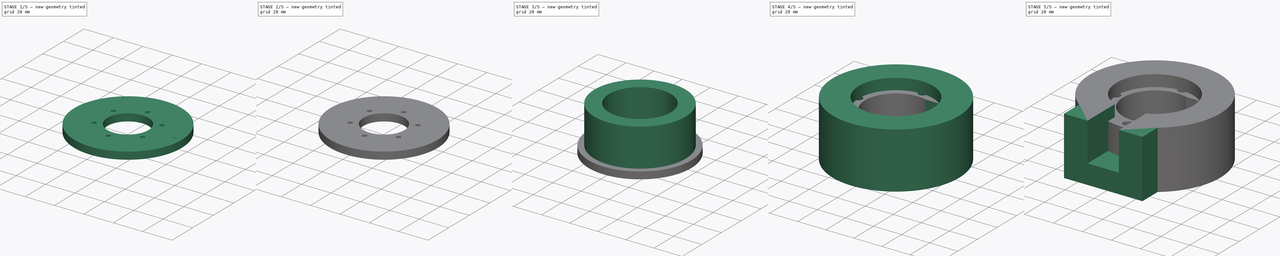
[diagram: build sequence overview — one tinted view per stage of 5, left to right]
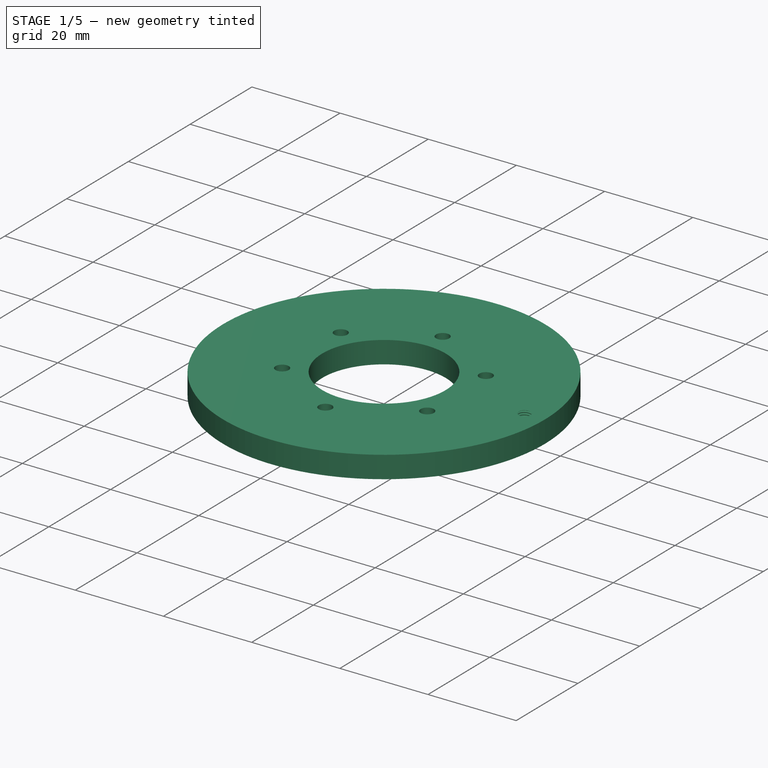
[diagram: stage 1 of 5 — iso view after this stage's code; geometry added in this stage tinted green]
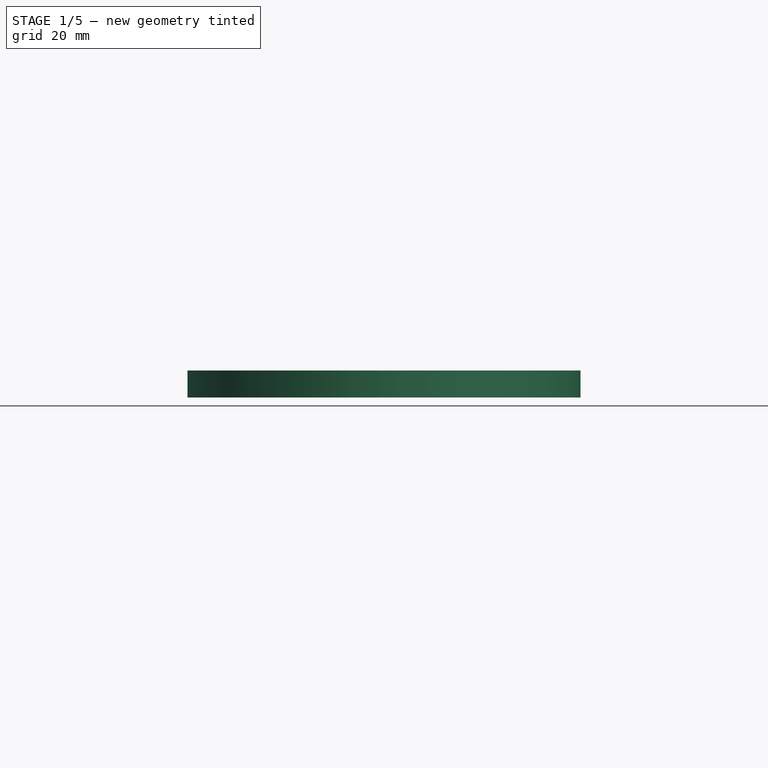
[diagram: stage 1 of 5 — front view after this stage's code; geometry added in this stage tinted green]
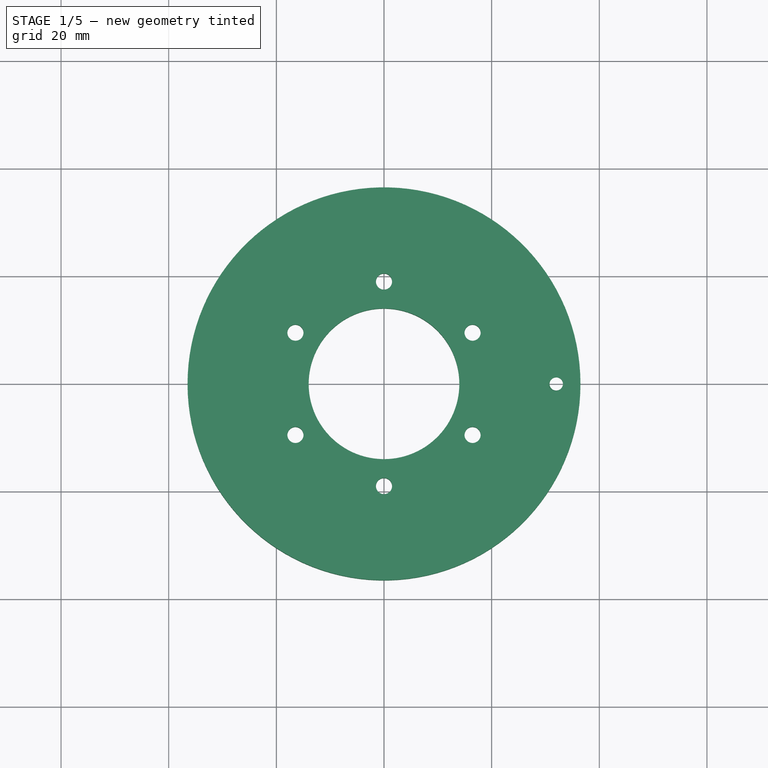
[diagram: stage 1 of 5 — top view after this stage's code; geometry added in this stage tinted green]
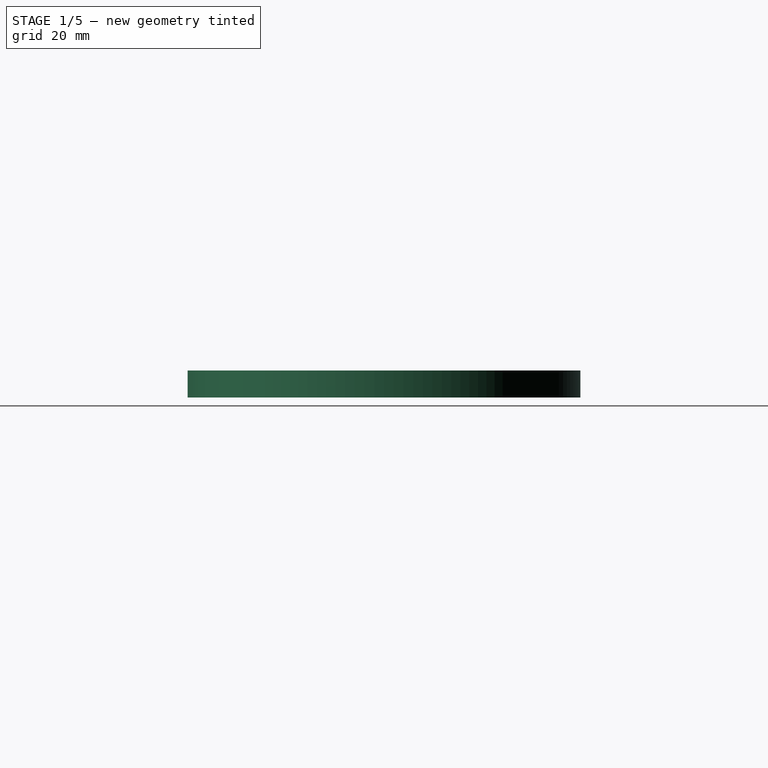
[diagram: stage 1 of 5 — right view after this stage's code; geometry added in this stage tinted green]
FCSTD DOCUMENT  (FreeCAD 1.0R39319 (Git))
Label: MainShaftHolder
License: All rights reserved
LicenseURL: https://en.wikipedia.org/wiki/All_rights_reserved
objects: Sketcher::SketchObject×15, PartDesign::Pocket×9, PartDesign::PolarPattern×6, PartDesign::Revolution×4, PartDesign::Body×4, PartDesign::Pad×1, App::Link×1, PartDesign::Hole×1
note: 91 computed .brp shape members not serialized (recipe doc carries the construction recipe); baked Part::Feature solids carry a one-line shape summary decoded from their .brp
EXTERNAL_REF file=Robot.FCStd obj=Spreadsheet

FEATURE [PartDesign::Body] Body004  label="MainArmRotatorV2_print"
  AllowCompound = false
  Group = -> [Sketch022,Revolution002,Sketch023,Pocket006,PolarPattern002,Sketch024,Pocket007,PolarPattern003]
  Origin = -> Origin004
  Placement = pos=(0,-3.45707e-06,29) rot=(0,0,1;0rad)
  Tip = -> PolarPattern003
FEATURE [Sketcher::SketchObject] Sketch025
  ArcFitTolerance = 1e-06
  AttachmentSupport = -> [XZ_Plane005]
  FullyConstrained = false
  MakeInternals = false
  MapMode = 5
  Placement = pos=(0,0,0) rot=(1,0,0;1.5708rad)
  sketch-geometry (4):
    g0: LineSegment StartX=14 StartY=0 StartZ=0 EndX=14 EndY=5 EndZ=0
    g1: LineSegment StartX=14 StartY=5 StartZ=0 EndX=36.5 EndY=5 EndZ=0
    g2: LineSegment StartX=36.5 StartY=5 StartZ=0 EndX=36.5 EndY=0 EndZ=0
    g3: LineSegment StartX=36.5 StartY=0 StartZ=0 EndX=14 EndY=0 EndZ=0
  constraints (11):
    c: Horizontal(g1)
    c: Coincident(g1,g2)
    c: PointOnObject(g2,g-1)
    c: Vertical(g2)
    c: Coincident(g2,g3)
    c: Coincident(g3,g0)
    c: Vertical(g0)
    c: Horizontal(g3)
    c: Distance(g-2,g0) = 14
    c: Distance(g2,g2) = 5
    c: Distance(g-2,g2) = 36.5
FEATURE [PartDesign::Revolution] Revolution003
  Angle = 360
  Angle2 = 60
  Axis = (0,2e-16,1)
  Base = (0,0,0)
  Placement = pos=(0,0,0) rot=(1,0,0;1.5708rad)
  Profile = -> Sketch025
  ReferenceAxis = -> Sketch025 [V_Axis]
  Refine = true
  Reversed = true
  Suppressed = false
  Type = 0
FEATURE [Sketcher::SketchObject] Sketch026
  ArcFitTolerance = 1e-06
  AttachmentSupport = -> [Revolution003]
  FullyConstrained = true
  MakeInternals = false
  MapMode = 5
  Placement = pos=(0,1.1e-15,5) rot=(0,0,1;3.14159rad)
  sketch-geometry (1):
    g0: Circle CenterX=0 CenterY=19 CenterZ=0 NormalX=0 NormalY=0 NormalZ=1 AngleXU=0 Radius=1.5
  constraints (3):
    c: Diameter(g0) = 3
    c: Vertical(g0,g-1)
    c: DistanceY(g-1,g0) = 19
FEATURE [PartDesign::Pocket] Pocket008
  BaseFeature = -> Revolution003
  Direction = (0,0,-1)
  Length = 5
  Length2 = 5
  Placement = pos=(0,0,0) rot=(1,0,0;1.5708rad)
  Profile = -> Sketch026
  ReferenceAxis = -> Sketch026 [N_Axis]
  Refine = true
  Suppressed = false
  Type = 0
FEATURE [PartDesign::PolarPattern] PolarPattern004
  Angle = 360
  Axis = -> Sketch026 [N_Axis]
  BaseFeature = -> Pocket008
  Mode = 0
  Occurrences = 6
  Offset = 120
  Originals = -> [Pocket008]
  Placement = pos=(0,0,0) rot=(1,0,0;1.5708rad)
  Refine = true
  Suppressed = false
  TransformMode = 0
FEATURE [Sketcher::SketchObject] Sketch027
  ArcFitTolerance = 1e-06
  AttachmentSupport = -> [PolarPattern004]
  FullyConstrained = true
  MakeInternals = false
  MapMode = 5
  Placement = pos=(0,1.1e-15,5) rot=(0,0,1;3.14159rad)
  sketch-geometry (1):
    g0: Circle CenterX=-32 CenterY=0 CenterZ=0 NormalX=0 NormalY=0 NormalZ=1 AngleXU=0 Radius=1.5
  constraints (3):
    c: Diameter(g0) = 3
    c: PointOnObject(g0,g-1)
    c: DistanceX(g0,g-1) = 32
FEATURE [PartDesign::Hole] Hole
  BaseFeature = -> PolarPattern004
  CustomThreadClearance = 0
  Depth = 5
  DepthType = 0
  Diameter = 2.5
  DrillForDepth = false
  DrillPoint = 0
  DrillPointAngle = 118
  HoleCutCountersinkAngle = 90
  HoleCutCustomValues = false
  HoleCutDepth = 0
  HoleCutDiameter = 6.1
  HoleCutType = 0
  ModelThread = true
  Placement = pos=(0,0,0) rot=(1,0,0;1.5708rad)
  Profile = -> Sketch027
  Refine = true
  Suppressed = false
  Tapered = false
  TaperedAngle = 90
  ThreadClass = 1
  ThreadDepth = 5
  ThreadDepthType = 0
  ThreadDirection = 0
  ThreadFit = 0
  ThreadSize = 9
  ThreadType = 1
  Threaded = true
  UseCustomThreadClearance = false
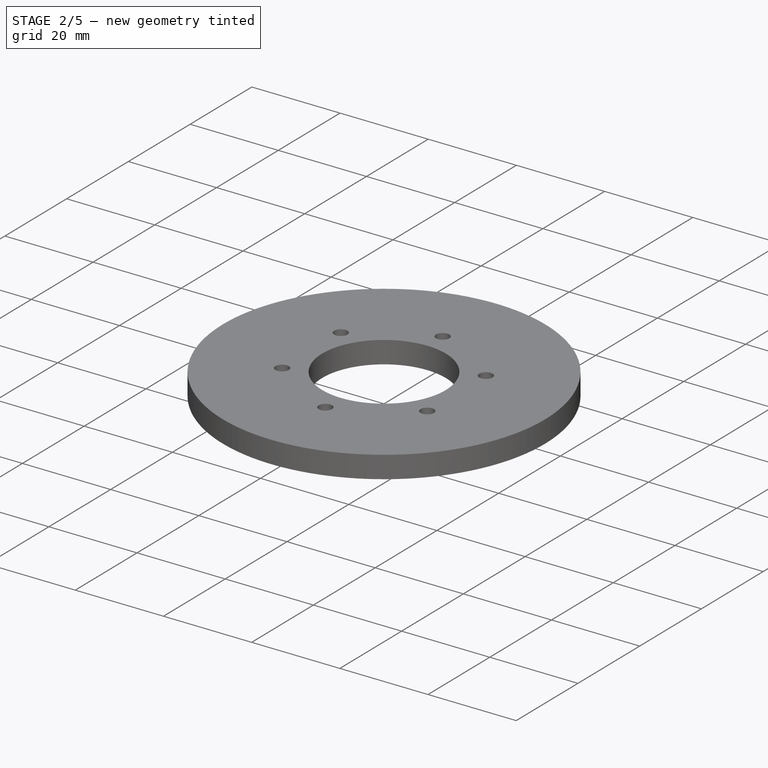
[diagram: stage 2 of 5 — iso view after this stage's code; geometry added in this stage tinted green]
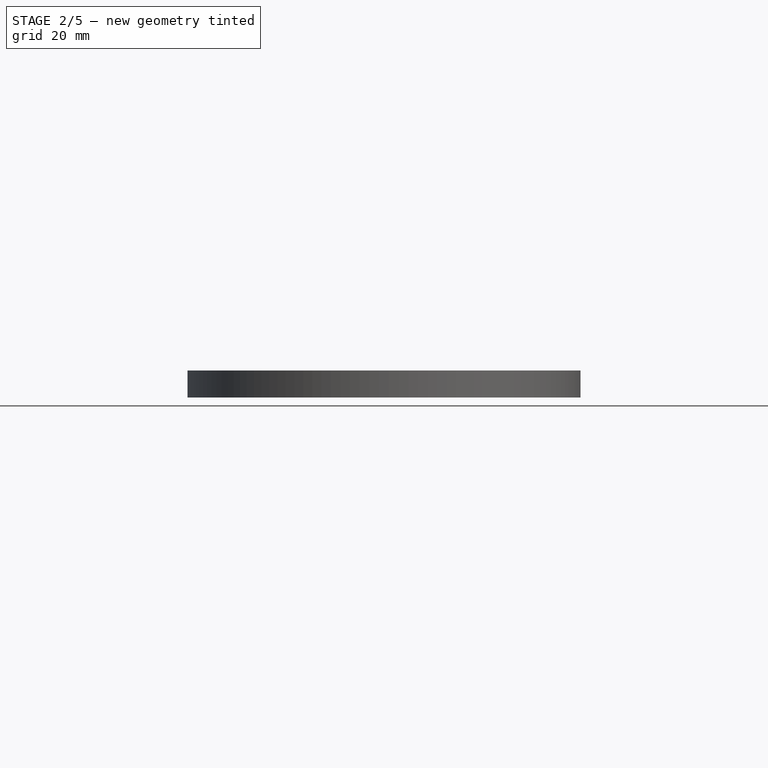
[diagram: stage 2 of 5 — front view after this stage's code; geometry added in this stage tinted green]
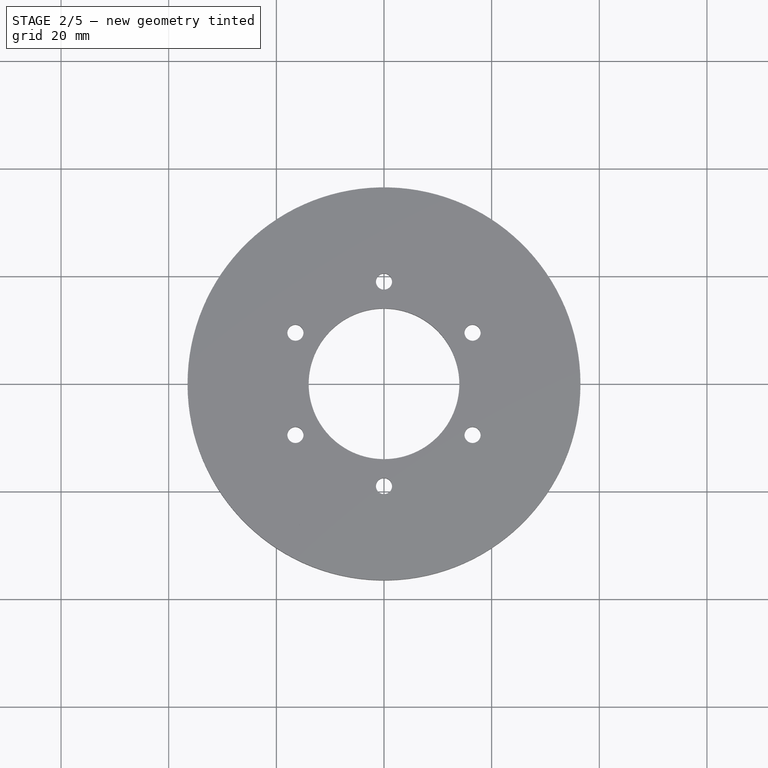
[diagram: stage 2 of 5 — top view after this stage's code; geometry added in this stage tinted green]
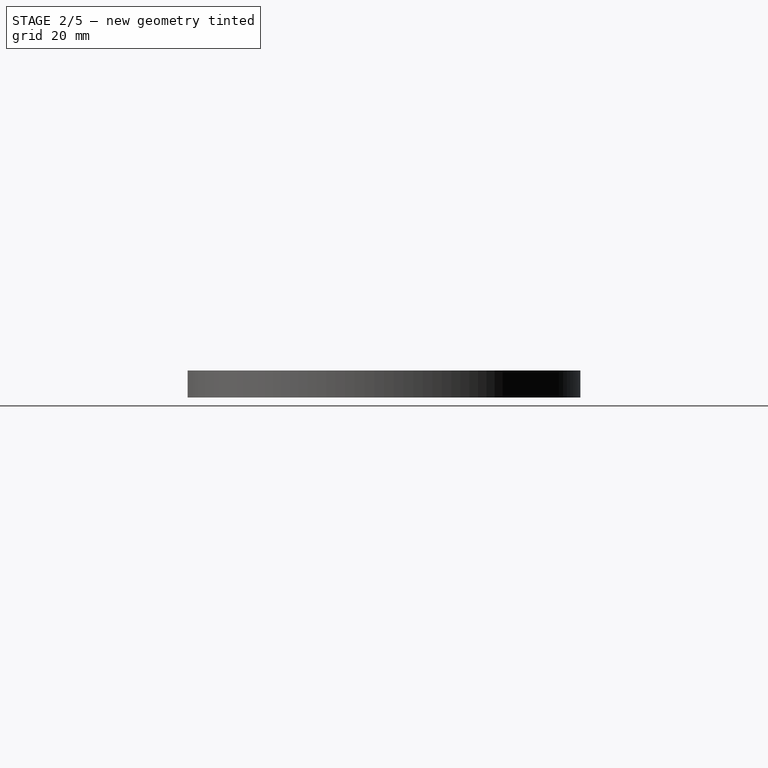
[diagram: stage 2 of 5 — right view after this stage's code; geometry added in this stage tinted green]
FEATURE [PartDesign::Body] Body  label="MainArmRotatorV2_old"
  AllowCompound = false
  Group = -> [Sketch017,Revolution001,Sketch018,Pocket002,PolarPattern001,Sketch019,Pocket003,Sketch020,Pocket004,Sketch021,Pocket005]
  Origin = -> Origin
  Placement = pos=(0,-3.45707e-06,29) rot=(0,0,1;0rad)
  Tip = -> Pocket005
FEATURE [Sketcher::SketchObject] Sketch022
  ArcFitTolerance = 1e-06
  AttachmentSupport = -> [XZ_Plane004]
  FullyConstrained = false
  MakeInternals = false
  MapMode = 5
  Placement = pos=(0,0,0) rot=(1,0,0;1.5708rad)
  sketch-geometry (4):
    g0: LineSegment StartX=14 StartY=0 StartZ=0 EndX=14 EndY=5 EndZ=0
    g1: LineSegment StartX=14 StartY=5 StartZ=0 EndX=36.5 EndY=5 EndZ=0
    g2: LineSegment StartX=36.5 StartY=5 StartZ=0 EndX=36.5 EndY=0 EndZ=0
    g3: LineSegment StartX=36.5 StartY=0 StartZ=0 EndX=14 EndY=0 EndZ=0
  constraints (11):
    c: Horizontal(g1)
    c: Coincident(g1,g2)
    c: PointOnObject(g2,g-1)
    c: Vertical(g2)
    c: Coincident(g2,g3)
    c: Coincident(g3,g0)
    c: Vertical(g0)
    c: Horizontal(g3)
    c: Distance(g-2,g0) = 14
    c: Distance(g2,g2) = 5
    c: Distance(g-2,g2) = 36.5
FEATURE [PartDesign::Revolution] Revolution002
  Angle = 360
  Angle2 = 60
  Axis = (0,2e-16,1)
  Base = (0,0,0)
  Placement = pos=(0,0,0) rot=(1,0,0;1.5708rad)
  Profile = -> Sketch022
  ReferenceAxis = -> Sketch022 [V_Axis]
  Refine = true
  Reversed = true
  Suppressed = false
  Type = 0
FEATURE [Sketcher::SketchObject] Sketch023
  ArcFitTolerance = 1e-06
  AttachmentSupport = -> [Revolution002]
  FullyConstrained = true
  MakeInternals = false
  MapMode = 5
  Placement = pos=(0,2.2e-15,5) rot=(0,0,1;3.14159rad)
  sketch-geometry (1):
    g0: Circle CenterX=0 CenterY=19 CenterZ=0 NormalX=0 NormalY=0 NormalZ=1 AngleXU=0 Radius=1.5
  constraints (3):
    c: Diameter(g0) = 3
    c: Vertical(g0,g-1)
    c: DistanceY(g-1,g0) = 19
FEATURE [PartDesign::Pocket] Pocket006
  BaseFeature = -> Revolution002
  Direction = (0,0,-1)
  Length = 5
  Length2 = 5
  Placement = pos=(0,0,0) rot=(1,0,0;1.5708rad)
  Profile = -> Sketch023
  ReferenceAxis = -> Sketch023 [N_Axis]
  Refine = true
  Suppressed = false
  Type = 0
FEATURE [PartDesign::PolarPattern] PolarPattern002
  Angle = 360
  Axis = -> Sketch023 [N_Axis]
  BaseFeature = -> Pocket006
  Mode = 0
  Occurrences = 6
  Offset = 120
  Originals = -> [Pocket006]
  Placement = pos=(0,0,0) rot=(1,0,0;1.5708rad)
  Refine = true
  Suppressed = false
  TransformMode = 0
FEATURE [PartDesign::PolarPattern] PolarPattern005
  Angle = 360
  Axis = -> Sketch027 [N_Axis]
  BaseFeature = -> PolarPattern004
  Mode = 1
  Occurrences = 6
  Offset = 60
  Originals = -> [Hole]
  Placement = pos=(0,0,0) rot=(1,0,0;1.5708rad)
  Refine = true
  Suppressed = false
  TransformMode = 0
FEATURE [PartDesign::Body] Body005  label="MainArmRotatorV2"
  AllowCompound = false
  Group = -> [Sketch025,Revolution003,Sketch026,Pocket008,PolarPattern004,Sketch027,Hole,PolarPattern005]
  Origin = -> Origin005
  Placement = pos=(0,-3.45707e-06,29) rot=(0,0,1;0rad)
  Tip = -> PolarPattern005
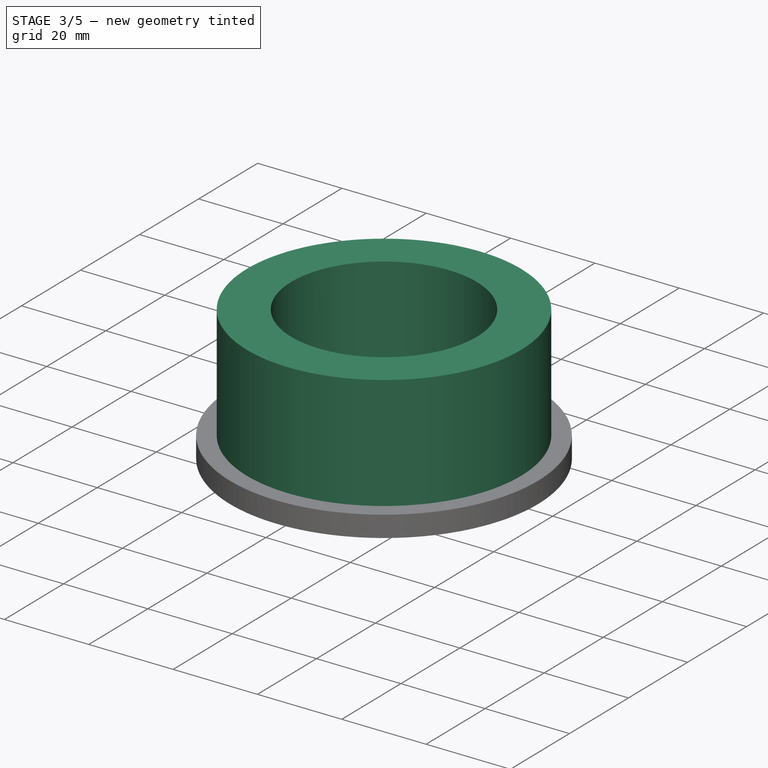
[diagram: stage 3 of 5 — iso view after this stage's code; geometry added in this stage tinted green]
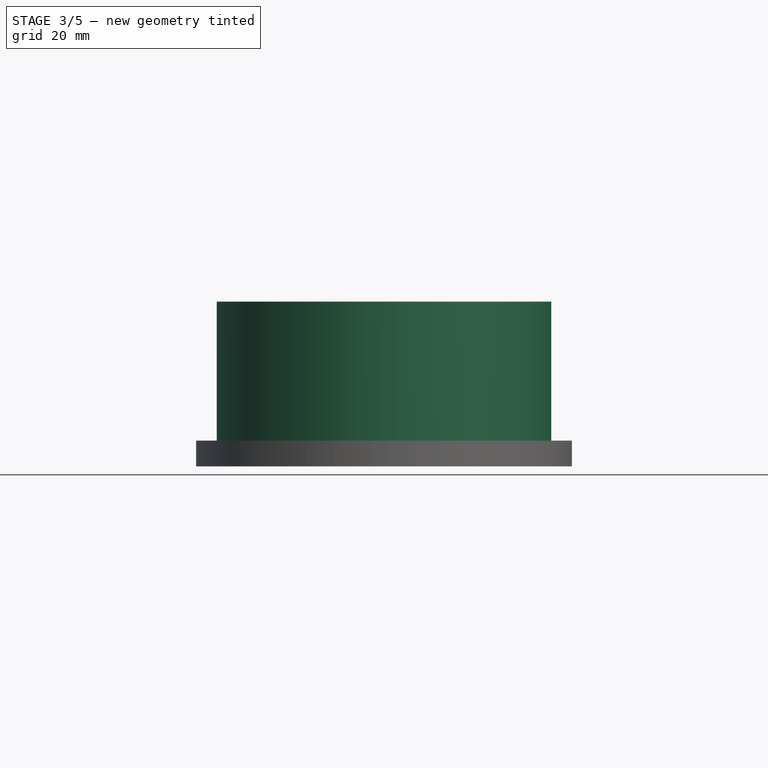
[diagram: stage 3 of 5 — front view after this stage's code; geometry added in this stage tinted green]
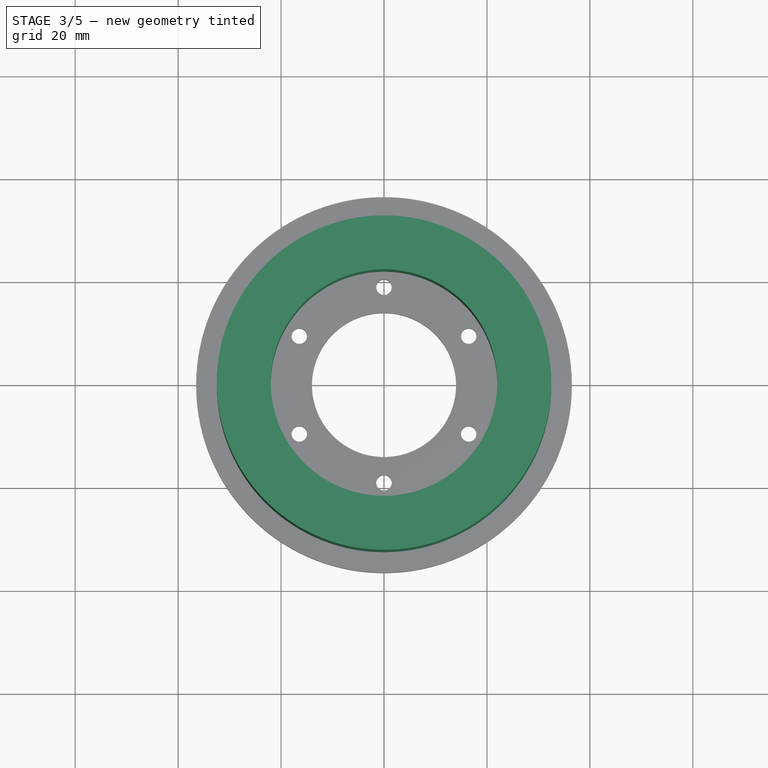
[diagram: stage 3 of 5 — top view after this stage's code; geometry added in this stage tinted green]
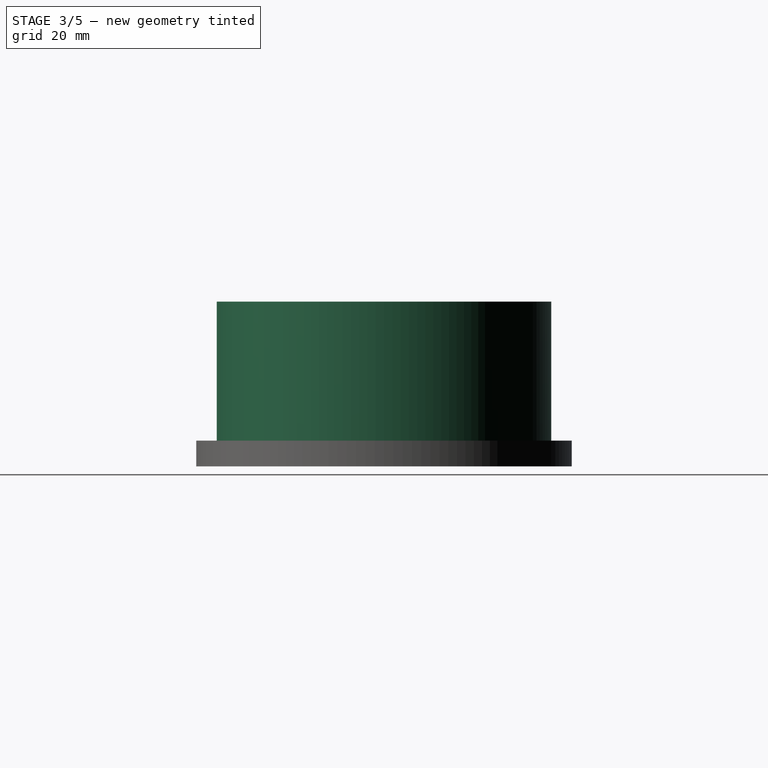
[diagram: stage 3 of 5 — right view after this stage's code; geometry added in this stage tinted green]
FEATURE [PartDesign::Body] Body003  label="MainArmRotator"
  AllowCompound = false
  Group = -> [Sketch014,Sketch,Revolution,Pocket,PolarPattern,Sketch015,Pad,Sketch016,Pocket001]
  Origin = -> Origin003
  Placement = pos=(0,0,22) rot=(0,0,1;1.5708rad)
  Tip = -> Pocket001
FEATURE [App::Link] Link001  label="SpreadSheet"
  LinkedObject = -> <external Robot.FCStd>#Spreadsheet
FEATURE [Sketcher::SketchObject] Sketch017
  ArcFitTolerance = 1e-06
  AttachmentSupport = -> [XZ_Plane]
  FullyConstrained = true
  MakeInternals = false
  MapMode = 5
  Placement = pos=(0,0,0) rot=(1,0,0;1.5708rad)
  sketch-geometry (8):
    g0: LineSegment StartX=14 StartY=0 StartZ=0 EndX=14 EndY=5 EndZ=0
    g1: LineSegment StartX=14 StartY=5 StartZ=0 EndX=22 EndY=5 EndZ=0
    g2: LineSegment StartX=22 StartY=5 StartZ=0 EndX=22 EndY=32 EndZ=0
    g3: LineSegment StartX=22 StartY=32 StartZ=0 EndX=32.5 EndY=32 EndZ=0
    g4: LineSegment StartX=32.5 StartY=32 StartZ=0 EndX=32.5 EndY=5 EndZ=0
    g5: LineSegment StartX=32.5 StartY=5 StartZ=0 EndX=36.5 EndY=5 EndZ=0
    g6: LineSegment StartX=36.5 StartY=5 StartZ=0 EndX=36.5 EndY=0 EndZ=0
    g7: LineSegment StartX=36.5 StartY=0 StartZ=0 EndX=14 EndY=0 EndZ=0
  constraints (24):
    c: Coincident(g0,g1)
    c: Horizontal(g1)
    c: Coincident(g1,g2)
    c: Vertical(g2)
    c: Coincident(g2,g3)
    c: Horizontal(g3)
    c: Coincident(g3,g4)
    c: Vertical(g4)
    c: Coincident(g4,g5)
    c: Horizontal(g5)
    c: Coincident(g5,g6)
    c: PointOnObject(g6,g-1)
    c: Vertical(g6)
    c: Coincident(g6,g7)
    c: Coincident(g7,g0)
    c: Vertical(g0)
    c: Horizontal(g7)
    c: Distance(g-2,g0) = 14
    c: Distance(g6,g6) = 5
    c: Distance(g7,g1) = 5
    c: Distance(g-2,g2) = 22
    c: Distance(g-2,g4) = 32.5
    c: Distance(g-1,g3) = 32
    c: Distance(g-2,g6) = 36.5
FEATURE [PartDesign::Revolution] Revolution001
  Angle = 360
  Angle2 = 60
  Axis = (0,2e-16,1)
  Base = (0,0,0)
  Placement = pos=(0,0,0) rot=(1,0,0;1.5708rad)
  Profile = -> Sketch017
  ReferenceAxis = -> Sketch017 [V_Axis]
  Refine = true
  Reversed = true
  Suppressed = false
  Type = 0
FEATURE [Sketcher::SketchObject] Sketch018
  ArcFitTolerance = 1e-06
  AttachmentSupport = -> [Revolution001]
  FullyConstrained = true
  MakeInternals = false
  MapMode = 5
  Placement = pos=(0,2.2e-15,5) rot=(0,0,1;3.14159rad)
  sketch-geometry (1):
    g0: Circle CenterX=0 CenterY=19 CenterZ=0 NormalX=0 NormalY=0 NormalZ=1 AngleXU=0 Radius=1.5
  constraints (3):
    c: Diameter(g0) = 3
    c: Vertical(g0,g-1)
    c: DistanceY(g-1,g0) = 19
FEATURE [PartDesign::Pocket] Pocket002
  BaseFeature = -> Revolution001
  Direction = (0,0,-1)
  Length = 5
  Length2 = 5
  Placement = pos=(0,0,0) rot=(1,0,0;1.5708rad)
  Profile = -> Sketch018
  ReferenceAxis = -> Sketch018 [N_Axis]
  Refine = true
  Suppressed = false
  Type = 0
FEATURE [PartDesign::PolarPattern] PolarPattern001
  Angle = 360
  Axis = -> Sketch018 [N_Axis]
  BaseFeature = -> Pocket002
  Mode = 0
  Occurrences = 6
  Offset = 120
  Originals = -> [Pocket002]
  Placement = pos=(0,0,0) rot=(1,0,0;1.5708rad)
  Refine = true
  Suppressed = false
  TransformMode = 0
FEATURE [Sketcher::SketchObject] Sketch024
  ArcFitTolerance = 1e-06
  AttachmentSupport = -> [PolarPattern002]
  FullyConstrained = true
  MakeInternals = false
  MapMode = 5
  Placement = pos=(0,2.2e-15,5) rot=(0,0,1;3.14159rad)
  sketch-geometry (1):
    g0: Circle CenterX=-32 CenterY=0 CenterZ=0 NormalX=0 NormalY=0 NormalZ=1 AngleXU=0 Radius=2
  constraints (3):
    c: Diameter(g0) = 4
    c: PointOnObject(g0,g-1)
    c: DistanceX(g0,g-1) = 32
FEATURE [PartDesign::Pocket] Pocket007
  BaseFeature = -> PolarPattern002
  Direction = (0,0,-1)
  Length = 5
  Length2 = 5
  Placement = pos=(0,0,0) rot=(1,0,0;1.5708rad)
  Profile = -> Sketch024
  ReferenceAxis = -> Sketch024 [N_Axis]
  Refine = true
  Suppressed = false
  Type = 0
FEATURE [PartDesign::PolarPattern] PolarPattern003
  Angle = 360
  Axis = -> Sketch024 [N_Axis]
  BaseFeature = -> Pocket007
  Mode = 1
  Occurrences = 6
  Offset = 60
  Originals = -> [Pocket007]
  Placement = pos=(0,0,0) rot=(1,0,0;1.5708rad)
  Refine = true
  Suppressed = false
  TransformMode = 0
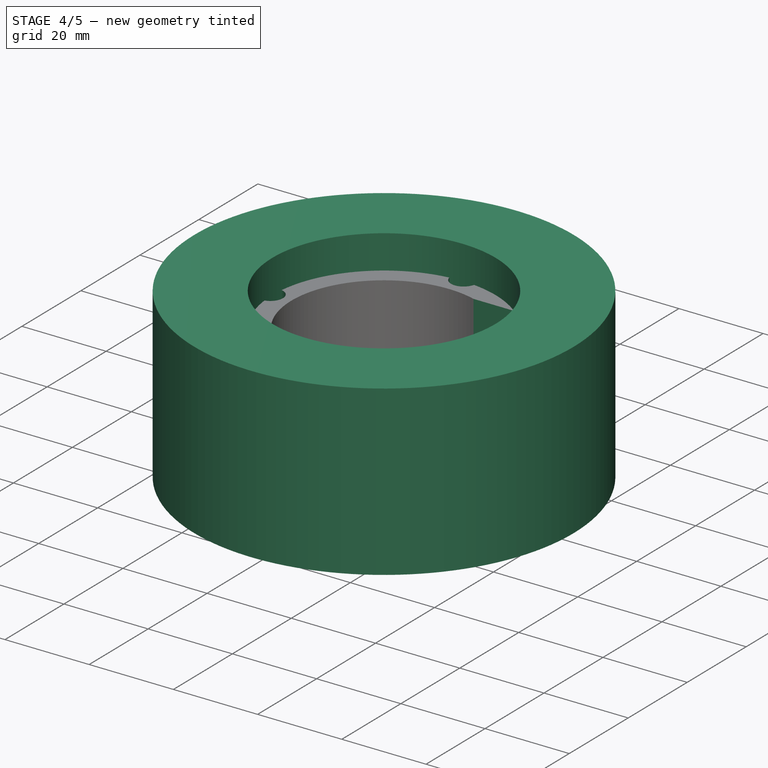
[diagram: stage 4 of 5 — iso view after this stage's code; geometry added in this stage tinted green]
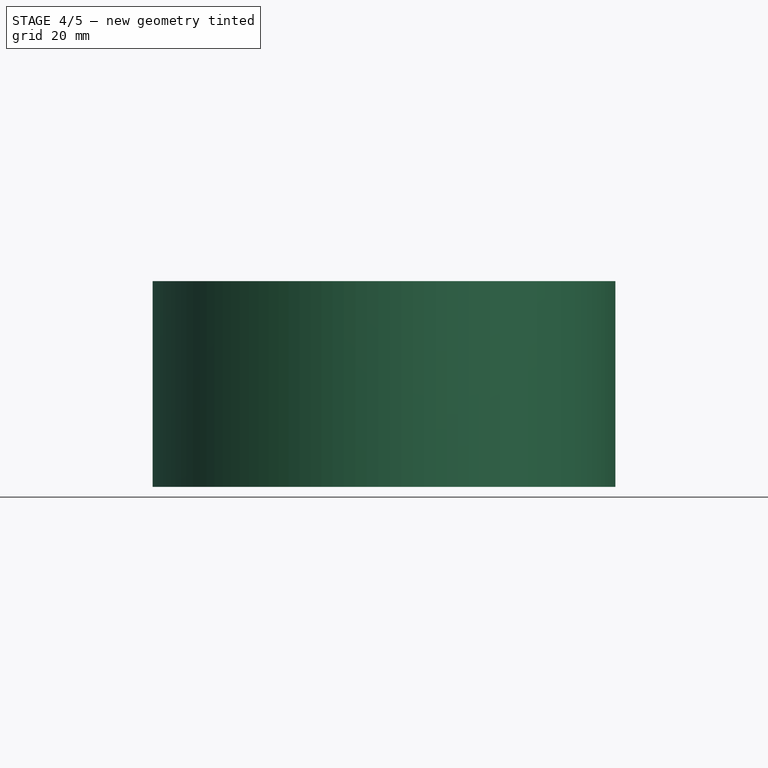
[diagram: stage 4 of 5 — front view after this stage's code; geometry added in this stage tinted green]
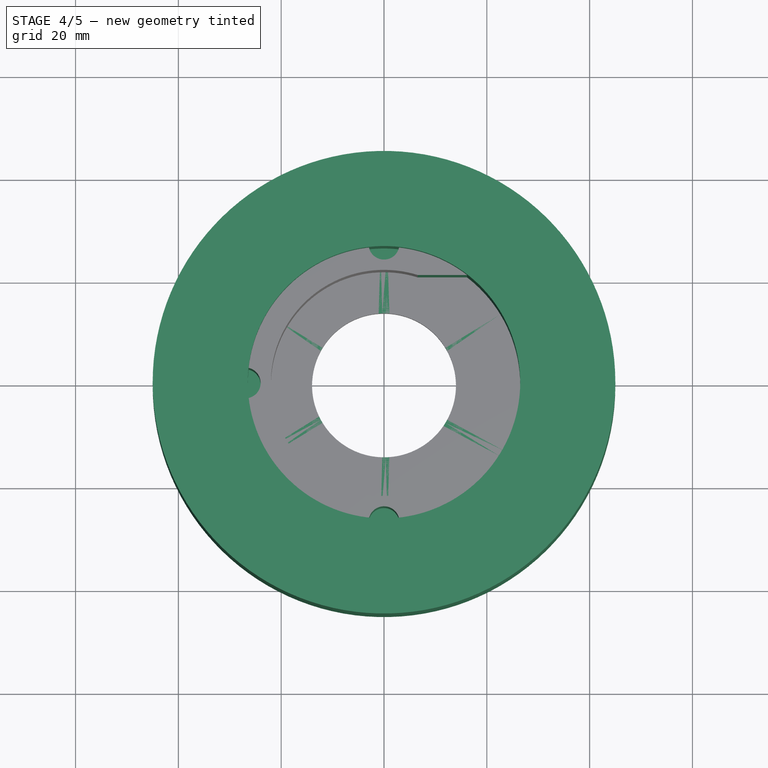
[diagram: stage 4 of 5 — top view after this stage's code; geometry added in this stage tinted green]
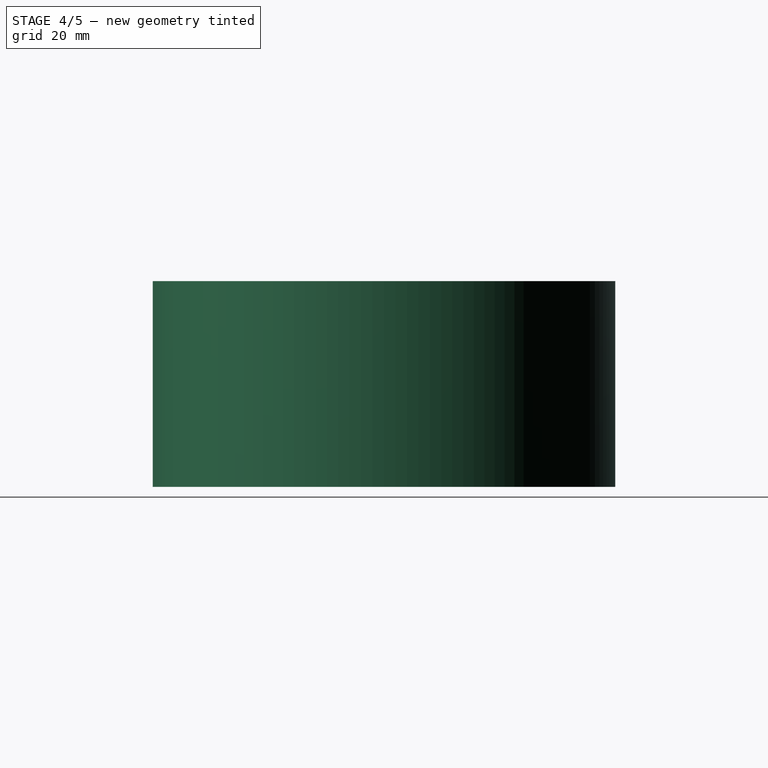
[diagram: stage 4 of 5 — right view after this stage's code; geometry added in this stage tinted green]
FEATURE [Sketcher::SketchObject] Sketch014
  ArcFitTolerance = 1e-06
  FullyConstrained = true
  MakeInternals = false
  MapMode = 5
  Placement = pos=(0,0,5) rot=(0,0,1;0rad)
  sketch-geometry (1):
    g0: Circle CenterX=0 CenterY=19 CenterZ=0 NormalX=0 NormalY=0 NormalZ=1 AngleXU=0 Radius=1.5
  constraints (3):
    c: PointOnObject(g0,g-2)
    c: Diameter(g0) = 3
    c: DistanceY(g-1,g0) = 19
FEATURE [Sketcher::SketchObject] Sketch
  ArcFitTolerance = 1e-06
  AttachmentSupport = -> [XZ_Plane003]
  FullyConstrained = true
  MakeInternals = false
  MapMode = 5
  Placement = pos=(0,0,0) rot=(1,0,0;1.5708rad)
  expr: Constraints[13] = <<SpreadSheet>>.ContactHeight
  expr: Constraints[14] = <<SpreadSheet>>.FirstArmHeight
  expr: Constraints[15] = <<SpreadSheet>>.FirstArmInnerSpaceDiameter / 2 + 4
  expr: Constraints[16] = <<SpreadSheet>>.OuterDiameter / 2
  expr: Constraints[17] = <<SpreadSheet>>.FirstArmInnerDiameter / 2
  sketch-geometry (6):
    g0: LineSegment StartX=14 StartY=0 StartZ=0 EndX=14 EndY=5 EndZ=0
    g1: LineSegment StartX=14 StartY=5 StartZ=0 EndX=26.5 EndY=5 EndZ=0
    g2: LineSegment StartX=26.5 StartY=5 StartZ=0 EndX=26.5 EndY=40 EndZ=0
    g3: LineSegment StartX=26.5 StartY=40 StartZ=0 EndX=45 EndY=40 EndZ=0
    g4: LineSegment StartX=45 StartY=40 StartZ=0 EndX=45 EndY=0 EndZ=0
    g5: LineSegment StartX=45 StartY=0 StartZ=0 EndX=14 EndY=0 EndZ=0
  constraints (18):
    c: PointOnObject(g0,g-1)
    c: Vertical(g0)
    c: Coincident(g0,g1)
    c: Horizontal(g1)
    c: Coincident(g1,g2)
    c: Vertical(g2)
    c: Coincident(g2,g3)
    c: Horizontal(g3)
    c: Coincident(g3,g4)
    c: Vertical(g4)
    c: Coincident(g4,g5)
    c: Coincident(g5,g0)
    c: Horizontal(g5)
    c: DistanceY(g0,g0) = 5
    c: DistanceY(g4,g4) = 40
    c: Distance(g-2,g2) = 26.5
    c: Distance(g-2,g4) = 45
    c: Distance(g0,g-2) = 14
FEATURE [PartDesign::Revolution] Revolution
  Angle = 360
  Angle2 = 60
  Axis = (0,2e-16,1)
  Base = (0,0,0)
  Placement = pos=(0,0,0) rot=(1,0,0;1.5708rad)
  Profile = -> Sketch
  ReferenceAxis = -> Sketch [V_Axis]
  Refine = true
  Reversed = true
  Suppressed = false
  Type = 0
FEATURE [Sketcher::SketchObject] Sketch019
  ArcFitTolerance = 1e-06
  AttachmentSupport = -> [PolarPattern001]
  FullyConstrained = false
  MakeInternals = false
  MapMode = 5
  Placement = pos=(0,1.41e-14,32) rot=(0,0,1;3.14159rad)
  sketch-geometry (4):
    g0: LineSegment StartX=-47.2167 StartY=21 StartZ=0 EndX=-47.2167 EndY=-21 EndZ=0
    g1: LineSegment StartX=-47.2167 StartY=-21 StartZ=0 EndX=-3.0924 EndY=-21 EndZ=0
    g2: LineSegment StartX=-3.0924 StartY=-21 StartZ=0 EndX=-3.0924 EndY=21 EndZ=0
    g3: LineSegment StartX=-3.0924 StartY=21 StartZ=0 EndX=-47.2167 EndY=21 EndZ=0
  constraints (10):
    c: Coincident(g0,g1)
    c: Coincident(g1,g2)
    c: Coincident(g2,g3)
    c: Coincident(g3,g0)
    c: Vertical(g0)
    c: Vertical(g2)
    c: Horizontal(g1)
    c: Horizontal(g3)
    c: Distance(g-1,g3) = 21
    c: Distance(g-1,g1) = 21
FEATURE [PartDesign::Pocket] Pocket003
  BaseFeature = -> PolarPattern001
  Direction = (0,0,-1)
  Length = 27
  Length2 = 5
  Placement = pos=(0,0,0) rot=(1,0,0;1.5708rad)
  Profile = -> Sketch019
  ReferenceAxis = -> Sketch019 [N_Axis]
  Refine = true
  Suppressed = false
  Type = 0
FEATURE [Sketcher::SketchObject] Sketch020
  ArcFitTolerance = 1e-06
  AttachmentSupport = -> [Pocket003]
  FullyConstrained = true
  MakeInternals = false
  MapMode = 5
  Placement = pos=(0,1.41e-14,32) rot=(0,0,1;3.14159rad)
  sketch-geometry (3):
    g0: Circle CenterX=0 CenterY=27 CenterZ=0 NormalX=0 NormalY=0 NormalZ=1 AngleXU=0 Radius=3
    g1: Circle CenterX=0 CenterY=-27 CenterZ=0 NormalX=0 NormalY=0 NormalZ=1 AngleXU=0 Radius=3
    g2: Circle CenterX=27 CenterY=0 CenterZ=0 NormalX=0 NormalY=0 NormalZ=1 AngleXU=0 Radius=3
  constraints (9):
    c: PointOnObject(g0,g-2)
    c: Diameter(g0) = 6
    c: DistanceY(g-1,g0) = 27
    c: PointOnObject(g1,g-2)
    c: PointOnObject(g2,g-1)
    c: Diameter(g2) = 6
    c: Diameter(g1) = 6
    c: DistanceX(g-1,g2) = 27
    c: DistanceY(g1,g-1) = 27
FEATURE [PartDesign::Pocket] Pocket004
  BaseFeature = -> Pocket003
  Direction = (0,0,-1)
  Length = 20
  Length2 = 5
  Placement = pos=(0,0,0) rot=(1,0,0;1.5708rad)
  Profile = -> Sketch020
  ReferenceAxis = -> Sketch020 [N_Axis]
  Refine = true
  Suppressed = false
  Type = 0
FEATURE [Sketcher::SketchObject] Sketch021
  ArcFitTolerance = 1e-06
  AttachmentSupport = -> [Pocket004]
  FullyConstrained = false
  MakeInternals = false
  MapMode = 5
  Placement = pos=(0,2.2e-15,5) rot=(0,0,1;3.14159rad)
  sketch-geometry (5):
    g0: LineSegment StartX=-11.0377 StartY=-5.18396 StartZ=0 EndX=-11.0377 EndY=5.18396 EndZ=0
    g1: LineSegment StartX=-11.0377 StartY=5.18396 StartZ=0 EndX=-66.9666 EndY=5.18396 EndZ=0
    g2: LineSegment StartX=-66.9666 StartY=5.18396 StartZ=0 EndX=-66.9666 EndY=-5.18396 EndZ=0
    g3: LineSegment StartX=-66.9666 StartY=-5.18396 StartZ=0 EndX=-11.0377 EndY=-5.18396 EndZ=0
    g4: GeomPoint [constr] X=-39.0021 Y=0 Z=0
  constraints (10):
    c: Coincident(g0,g1)
    c: Coincident(g1,g2)
    c: Coincident(g2,g3)
    c: Coincident(g3,g0)
    c: Vertical(g0)
    c: Vertical(g2)
    c: Horizontal(g1)
    c: Horizontal(g3)
    c: Symmetric(g2,g0,g4)
    c: PointOnObject(g4,g-1)
FEATURE [PartDesign::Pocket] Pocket005
  BaseFeature = -> Pocket004
  Direction = (0,0,-1)
  Length = 5
  Length2 = 5
  Placement = pos=(0,0,0) rot=(1,0,0;1.5708rad)
  Profile = -> Sketch021
  ReferenceAxis = -> Sketch021 [N_Axis]
  Refine = true
  Suppressed = false
  Type = 0
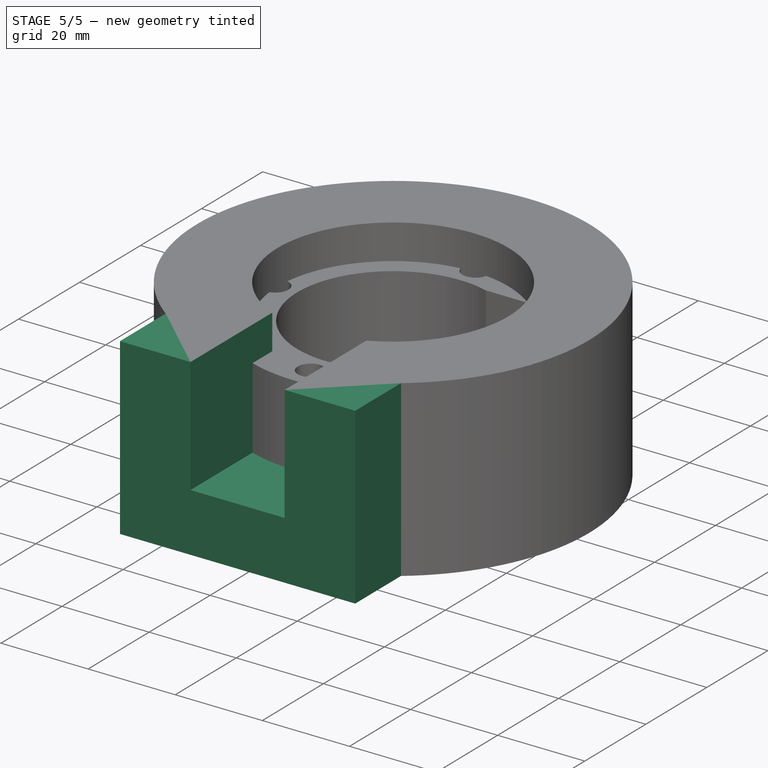
[diagram: stage 5 of 5 — iso view after this stage's code; geometry added in this stage tinted green]
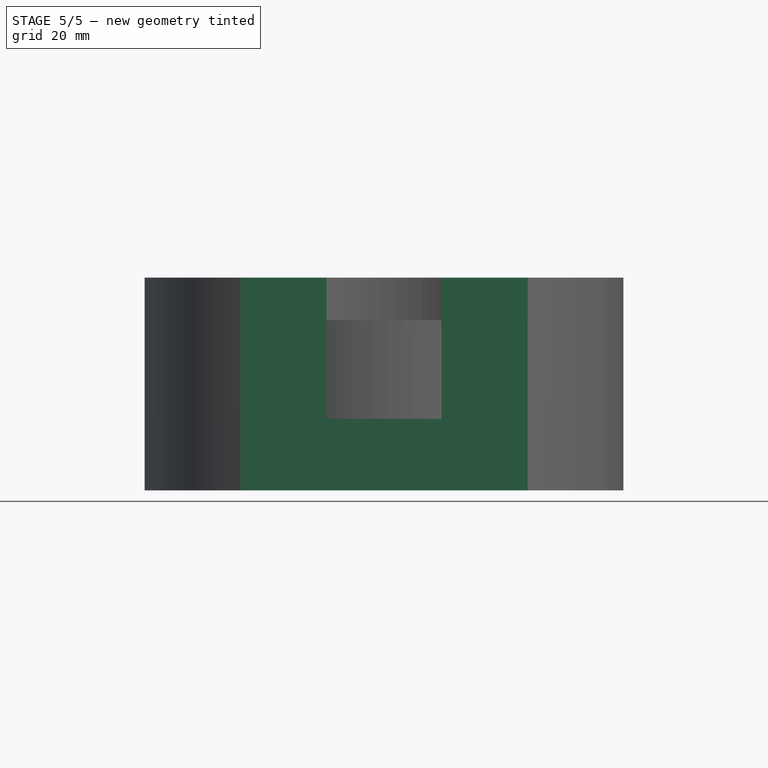
[diagram: stage 5 of 5 — front view after this stage's code; geometry added in this stage tinted green]
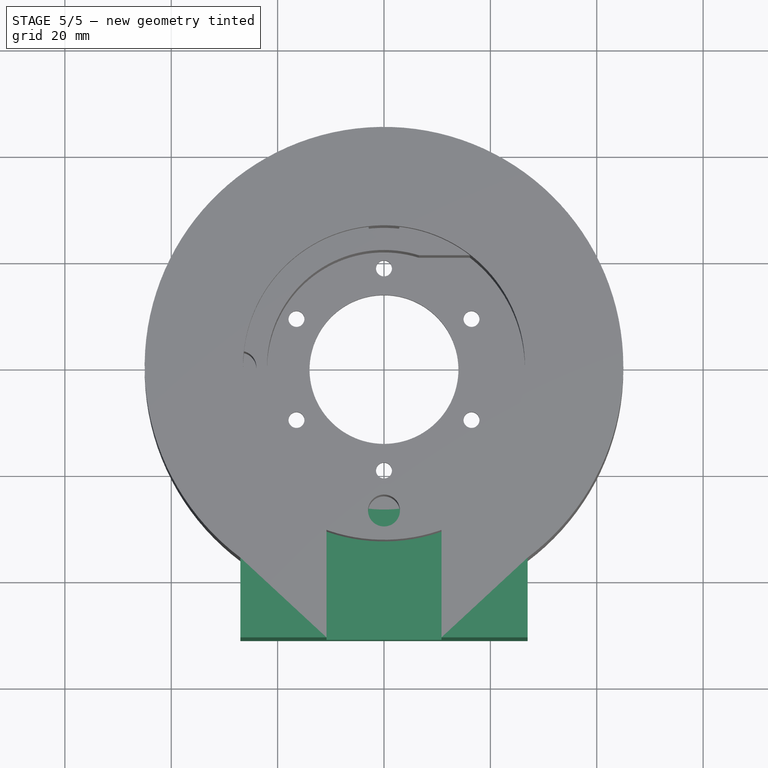
[diagram: stage 5 of 5 — top view after this stage's code; geometry added in this stage tinted green]
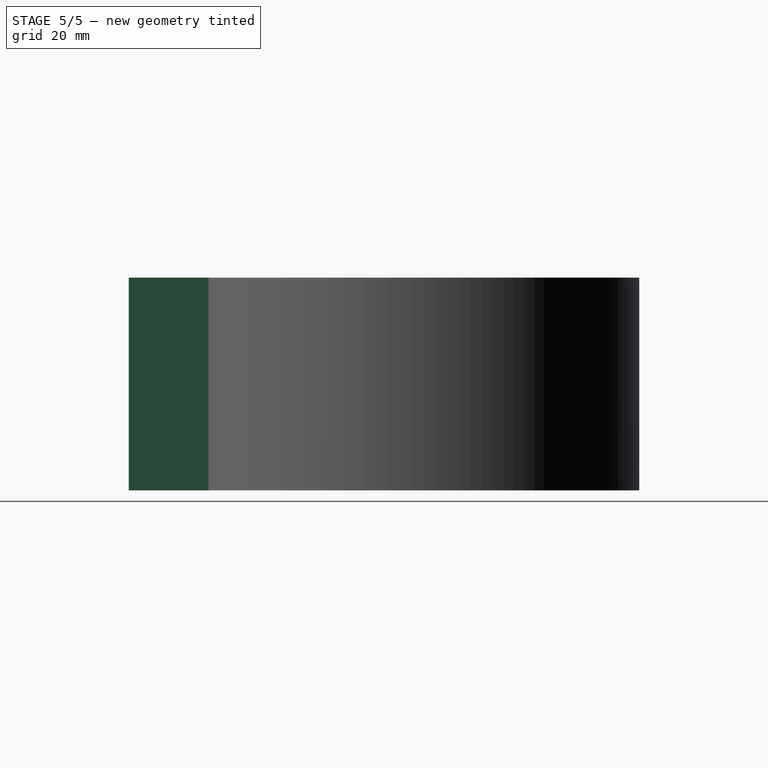
[diagram: stage 5 of 5 — right view after this stage's code; geometry added in this stage tinted green]
FEATURE [PartDesign::Pocket] Pocket
  BaseFeature = -> Revolution
  Direction = (0,0,-1)
  Length = 5
  Length2 = 5
  Placement = pos=(0,0,0) rot=(1,0,0;1.5708rad)
  Profile = -> Sketch014
  ReferenceAxis = -> Sketch014 [N_Axis]
  Refine = true
  Suppressed = false
  Type = 1
FEATURE [PartDesign::PolarPattern] PolarPattern
  Angle = 360
  Axis = -> Sketch014 [N_Axis]
  BaseFeature = -> Pocket
  Mode = 0
  Occurrences = 6
  Offset = 120
  Originals = -> [Pocket]
  Placement = pos=(0,0,0) rot=(1,0,0;1.5708rad)
  Refine = true
  Suppressed = false
  TransformMode = 0
FEATURE [Sketcher::SketchObject] Sketch015
  ArcFitTolerance = 1e-06
  AttachmentSupport = -> [PolarPattern]
  FullyConstrained = false
  MakeInternals = false
  MapMode = 5
  Placement = pos=(0,1.76e-14,40) rot=(0,0,1;3.14159rad)
  expr: Constraints[10] = <<SpreadSheet>>.ContactArmLength
  expr: Constraints[5] = <<SpreadSheet>>.ContactArmWith / 2
  expr: Constraints[6] = <<SpreadSheet>>.ContactArmWith / 2
  expr: Constraints[8] = <<SpreadSheet>>.OuterDiameter
  sketch-geometry (6):
    g0: LineSegment StartX=-27 StartY=51 StartZ=0 EndX=-27 EndY=36 EndZ=0
    g1: LineSegment StartX=27 StartY=36 StartZ=0 EndX=27 EndY=51 EndZ=0
    g2: LineSegment StartX=27 StartY=51 StartZ=0 EndX=-27 EndY=51 EndZ=0
    g3: ArcOfCircle CenterX=0 CenterY=0 CenterZ=0 NormalX=0 NormalY=0 NormalZ=1 AngleXU=0 Radius=45 StartAngle=0.927295 EndAngle=1.07621
    g4: LineSegment StartX=-21.36 StartY=39.6075 StartZ=0 EndX=21.36 EndY=39.6075 EndZ=0
    g5: ArcOfCircle CenterX=0 CenterY=0 CenterZ=0 NormalX=0 NormalY=0 NormalZ=1 AngleXU=0 Radius=45 StartAngle=2.06538 EndAngle=2.2143
  constraints (17):
    c: Coincident(g1,g2)
    c: Coincident(g2,g0)
    c: Vertical(g0)
    c: Vertical(g1)
    c: Horizontal(g2)
    c: Distance(g-2,g0) = 27
    c: Distance(g-2,g1) = 27
    c: Coincident(g3,g-1)
    c: Diameter(g3) = 90
    c: Coincident(g3,g1)
    c: DistanceY(g1,g1) = 15
    c: Coincident(g0,g5)
    c: Horizontal(g4)
    c: Equal(g3,g5)
    c: Coincident(g3,g4)
    c: Coincident(g3,g5)
    c: Coincident(g4,g5)
FEATURE [PartDesign::Pad] Pad
  BaseFeature = -> PolarPattern
  Direction = (0,0,1)
  Length = 40
  Length2 = 10
  Placement = pos=(0,0,0) rot=(1,0,0;1.5708rad)
  Profile = -> Sketch015
  ReferenceAxis = -> Sketch015 [N_Axis]
  Refine = true
  Reversed = true
  Suppressed = false
  Type = 0
  expr: Length = <<SpreadSheet>>.FirstArmHeight
FEATURE [Sketcher::SketchObject] Sketch016
  ArcFitTolerance = 1e-06
  AttachmentSupport = -> [Pad]
  FullyConstrained = false
  MakeInternals = false
  MapMode = 5
  Placement = pos=(0,-51,1.12e-14) rot=(1,0,0;1.5708rad)
  sketch-geometry (5):
    g0: LineSegment StartX=10.8116 StartY=13.4418 StartZ=0 EndX=10.8116 EndY=40.8754 EndZ=0
    g1: LineSegment StartX=10.8116 StartY=40.8754 StartZ=0 EndX=-10.8116 EndY=40.8754 EndZ=0
    g2: LineSegment StartX=-10.8116 StartY=40.8754 StartZ=0 EndX=-10.8116 EndY=13.4418 EndZ=0
    g3: LineSegment StartX=-10.8116 StartY=13.4418 StartZ=0 EndX=10.8116 EndY=13.4418 EndZ=0
    g4: GeomPoint [constr] X=0 Y=27.1586 Z=0
  constraints (10):
    c: Coincident(g0,g1)
    c: Coincident(g1,g2)
    c: Coincident(g2,g3)
    c: Coincident(g3,g0)
    c: Vertical(g0)
    c: Vertical(g2)
    c: Horizontal(g1)
    c: Horizontal(g3)
    c: Symmetric(g2,g0,g4)
    c: PointOnObject(g4,g-2)
FEATURE [PartDesign::Pocket] Pocket001
  BaseFeature = -> Pad
  Direction = (0,1,-2e-16)
  Length = 35
  Length2 = 5
  Placement = pos=(0,0,0) rot=(1,0,0;1.5708rad)
  Profile = -> Sketch016
  ReferenceAxis = -> Sketch016 [N_Axis]
  Refine = true
  Suppressed = false
  Type = 0
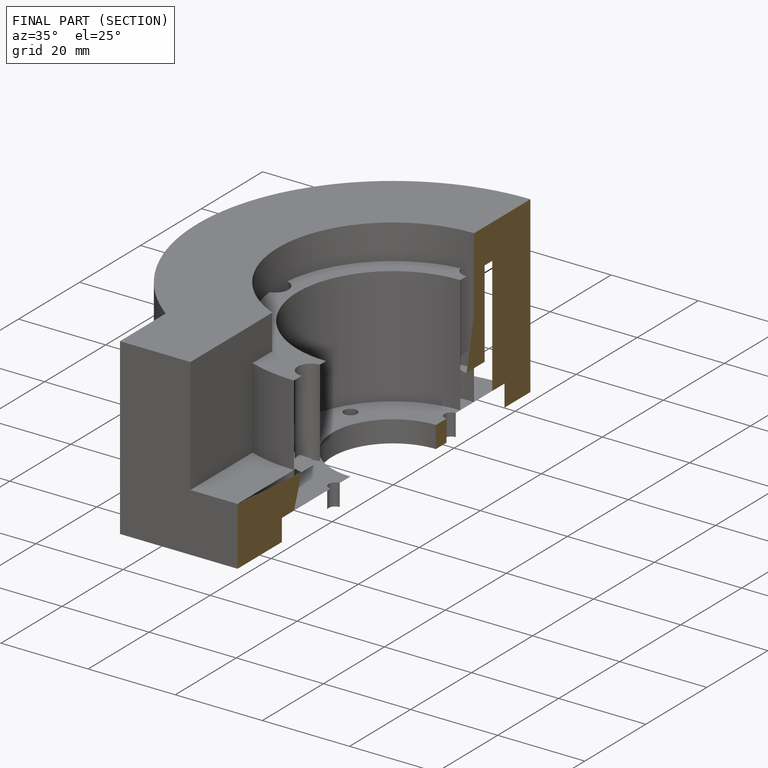
[diagram: finished part — half-section view (interior)]
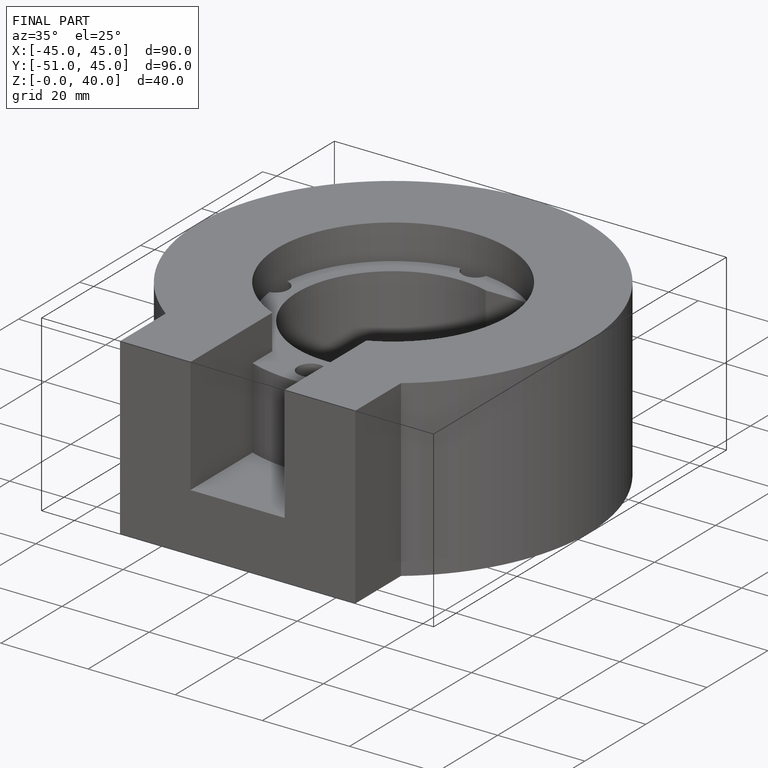
[diagram: finished part — iso view with bounding-box wireframe]
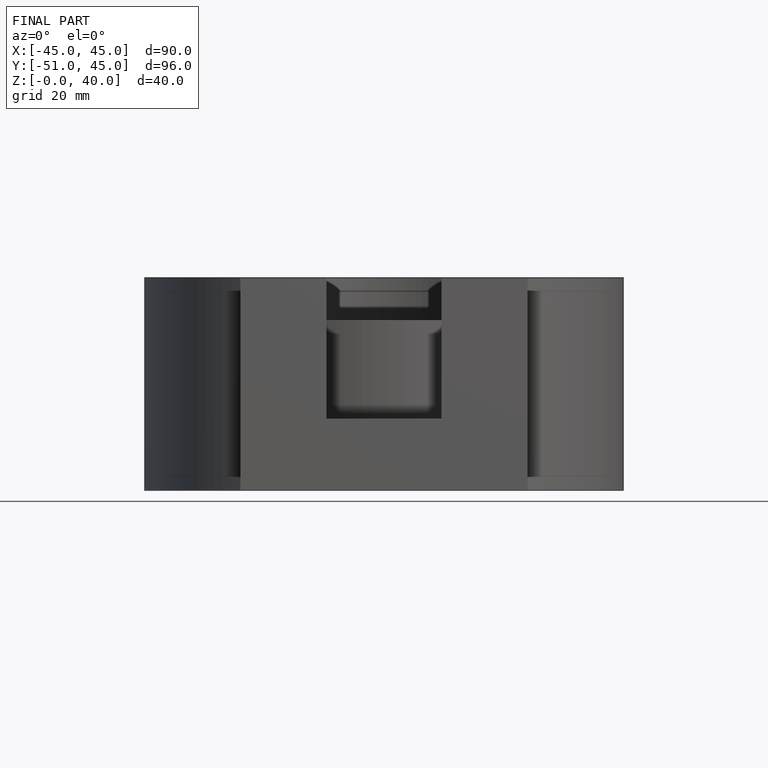
[diagram: finished part — front view with bounding-box wireframe]
